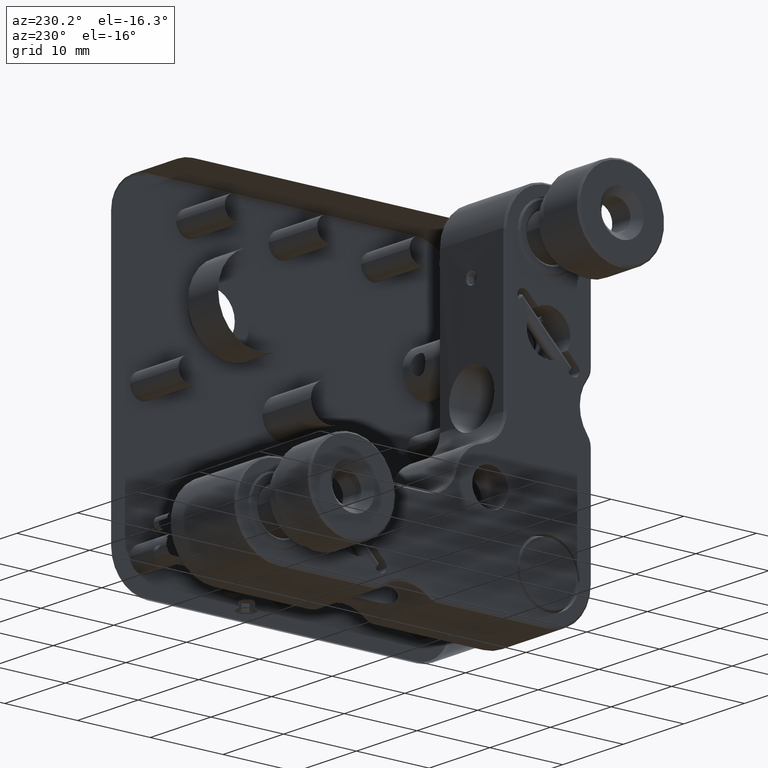
[diagram: clean part render]
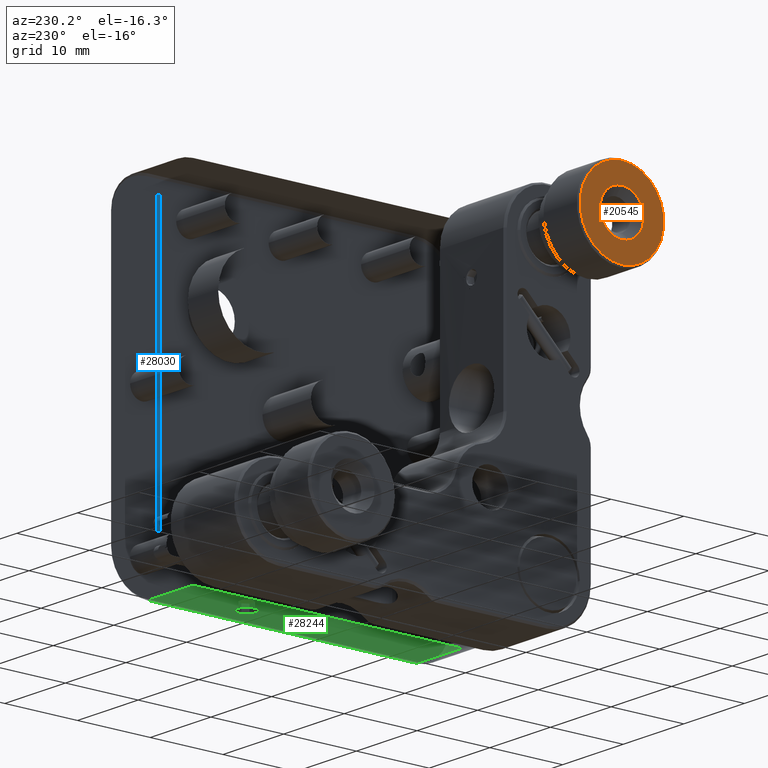
[diagram: same view with three faces highlighted in distinct colors, each labeled with its STEP entity id]
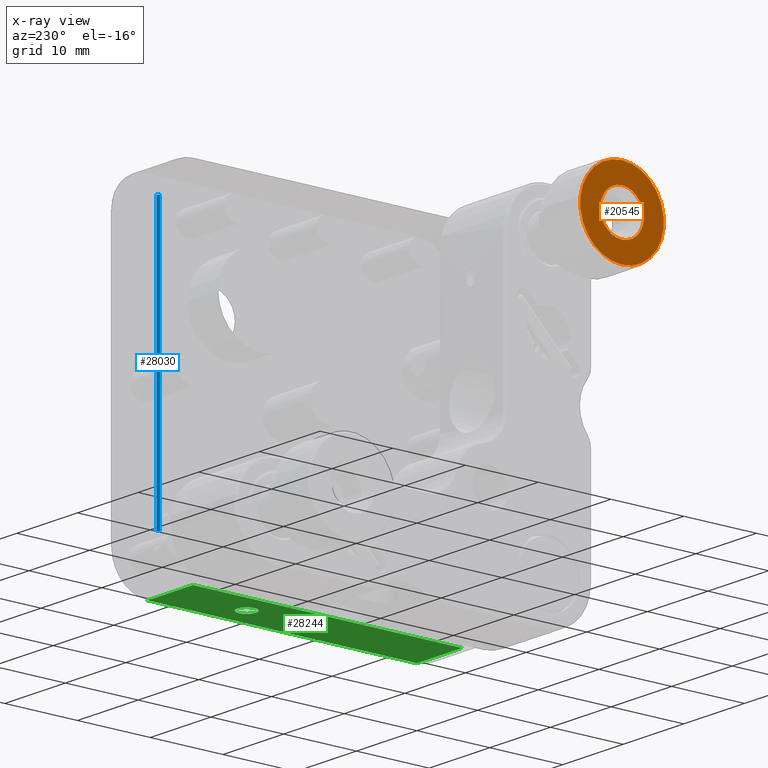
[diagram: x-ray of the same camera — body ghosted, the three highlighted faces saturated]
A machine part, auxiliary view with three faces highlighted in distinct colors.
The next image is the same camera in x-ray (body ghosted, the three faces saturated) — at least one of them is partly hidden behind the body in this view.
Their STEP definitions:

[orange] entity #20545 — the highlighted planar face has unit normal (1, -0, -0).
#692 = AXIS2_PLACEMENT_3D ( 'NONE', #29428, #26297, #4690 ) ;
#2191 = DIRECTION ( 'NONE',  ( -6.033820785925656244E-16, 0.000000000000000000, -1.000000000000000000 ) ) ;
#3595 = VERTEX_POINT ( 'NONE', #17958 ) ;
#3852 = FACE_BOUND ( 'NONE', #4247, .T. ) ;
#4247 = EDGE_LOOP ( 'NONE', ( #15850 ) ) ;
#4690 = DIRECTION ( 'NONE',  ( 0.000000000000000000, 0.000000000000000000, 1.000000000000000000 ) ) ;
#4694 = EDGE_LOOP ( 'NONE', ( #30647 ) ) ;
#6217 = AXIS2_PLACEMENT_3D ( 'NONE', #13934, #25608, #18834 ) ;
#13330 = AXIS2_PLACEMENT_3D ( 'NONE', #24262, #19234, #2191 ) ;
#13780 = PLANE ( 'NONE',  #6217 ) ;
#13934 = CARTESIAN_POINT ( 'NONE',  ( -17.60735931288070333, -18.50000000000006395, 18.49999999999982236 ) ) ;
#15850 = ORIENTED_EDGE ( 'NONE', *, *, #19535, .F. ) ;
#17958 = CARTESIAN_POINT ( 'NONE',  ( -17.60735931281942612, -18.50000000000006395, 21.49999999993976729 ) ) ;
#18834 = DIRECTION ( 'NONE',  ( -4.440892098500623697E-16, 0.000000000000000000, -1.000000000000000000 ) ) ;
#19234 = DIRECTION ( 'NONE',  ( 1.000000000000000000, -2.312086200337589731E-16, -5.300051052593729313E-16 ) ) ;
#19535 = EDGE_CURVE ( 'NONE', #3595, #3595, #24860, .T. ) ;
#20545 = ADVANCED_FACE ( 'NONE', ( #30959, #3852 ), #13780, .F. ) ;
#24262 = CARTESIAN_POINT ( 'NONE',  ( -17.60735931279705824, -18.50000000000006395, 18.49999999999982236 ) ) ;
#24860 = CIRCLE ( 'NONE', #692, 2.999999999939946704 ) ;
#25608 = DIRECTION ( 'NONE',  ( 1.000000000000000000, -6.523163957565617850E-17, -4.440892098500623697E-16 ) ) ;
#25988 = CARTESIAN_POINT ( 'NONE',  ( -17.60735931279706179, -18.50000000000006395, 12.74999999992298605 ) ) ;
#26297 = DIRECTION ( 'NONE',  ( -1.000000000000000000, 0.000000000000000000, -0.000000000000000000 ) ) ;
#27210 = EDGE_CURVE ( 'NONE', #28338, #28338, #30017, .T. ) ;
#28338 = VERTEX_POINT ( 'NONE', #25988 ) ;
#29428 = CARTESIAN_POINT ( 'NONE',  ( -17.60735931281942612, -18.50000000000006395, 18.49999999999982236 ) ) ;
#30017 = CIRCLE ( 'NONE', #13330, 5.750000000076836315 ) ;
#30647 = ORIENTED_EDGE ( 'NONE', *, *, #27210, .F. ) ;
#30959 = FACE_OUTER_BOUND ( 'NONE', #4694, .T. ) ;

[blue] entity #28030 — the highlighted planar face has unit normal (-0.7071, 0.7071, -0).
#235 = CARTESIAN_POINT ( 'NONE',  ( 8.746067811865493979, 23.49999999999998224, 18.49999999999999289 ) ) ;
#318 = ORIENTED_EDGE ( 'NONE', *, *, #7543, .F. ) ;
#790 = LINE ( 'NONE', #10422, #11212 ) ;
#1978 = ORIENTED_EDGE ( 'NONE', *, *, #29377, .T. ) ;
#3132 = DIRECTION ( 'NONE',  ( -0.7071067811865570096, 0.7071067811865380248, -2.566002481758752896E-16 ) ) ;
#3209 = LINE ( 'NONE', #29540, #9230 ) ;
#3240 = ORIENTED_EDGE ( 'NONE', *, *, #11063, .F. ) ;
#3761 = AXIS2_PLACEMENT_3D ( 'NONE', #15436, #3132, #26939 ) ;
#5500 = LINE ( 'NONE', #8956, #8745 ) ;
#6215 = LINE ( 'NONE', #13311, #26452 ) ;
#7543 = EDGE_CURVE ( 'NONE', #20385, #18164, #3209, .T. ) ;
#8127 = CARTESIAN_POINT ( 'NONE',  ( 8.496067811885041010, 23.25000000001951861, 18.49999999999999645 ) ) ;
#8188 = DIRECTION ( 'NONE',  ( 0.7071067811865380248, 0.7071067811865570096, -0.000000000000000000 ) ) ;
#8745 = VECTOR ( 'NONE', #25198, 1000.000000000000000 ) ;
#8956 = CARTESIAN_POINT ( 'NONE',  ( 8.496067811865485098, 23.24999999999996803, 4.824766990668619821E-15 ) ) ;
#9230 = VECTOR ( 'NONE', #19467, 1000.000000000000000 ) ;
#10422 = CARTESIAN_POINT ( 'NONE',  ( 8.496067811865483321, 23.24999999999996447, 18.49999999999999645 ) ) ;
#11063 = EDGE_CURVE ( 'NONE', #24767, #20385, #790, .T. ) ;
#11212 = VECTOR ( 'NONE', #8188, 1000.000000000000000 ) ;
#13311 = CARTESIAN_POINT ( 'NONE',  ( 498985.2460677998024, 498999.9999999999418, -18.50000000000000355 ) ) ;
#13973 = EDGE_CURVE ( 'NONE', #24767, #26492, #5500, .T. ) ;
#15436 = CARTESIAN_POINT ( 'NONE',  ( 8.496067811865486874, 23.24999999999996092, -3.770308015664799005E-15 ) ) ;
#17797 = PLANE ( 'NONE',  #3761 ) ;
#18164 = VERTEX_POINT ( 'NONE', #25055 ) ;
#18677 = DIRECTION ( 'NONE',  ( 0.7071067811865390240, 0.7071067811865561215, 0.000000000000000000 ) ) ;
#19270 = CARTESIAN_POINT ( 'NONE',  ( 8.496067811866396369, 23.24999999997689315, -18.50000000000000355 ) ) ;
#19467 = DIRECTION ( 'NONE',  ( 0.000000000000000000, -3.696806454336957144E-16, -1.000000000000000000 ) ) ;
#19698 = FACE_OUTER_BOUND ( 'NONE', #24186, .T. ) ;
#20385 = VERTEX_POINT ( 'NONE', #235 ) ;
#24186 = EDGE_LOOP ( 'NONE', ( #1978, #318, #3240, #27451 ) ) ;
#24767 = VERTEX_POINT ( 'NONE', #8127 ) ;
#25055 = CARTESIAN_POINT ( 'NONE',  ( 8.746067811859580488, 23.49999999997473665, -18.50000000000000355 ) ) ;
#25198 = DIRECTION ( 'NONE',  ( -6.793094355065668215E-18, 2.261613359270136103E-33, -1.000000000000000000 ) ) ;
#26452 = VECTOR ( 'NONE', #18677, 1000.000000000000000 ) ;
#26492 = VERTEX_POINT ( 'NONE', #19270 ) ;
#26939 = DIRECTION ( 'NONE',  ( -0.7071067811865380248, -0.7071067811865570096, 0.000000000000000000 ) ) ;
#27451 = ORIENTED_EDGE ( 'NONE', *, *, #13973, .T. ) ;
#28030 = ADVANCED_FACE ( 'NONE', ( #19698 ), #17797, .F. ) ;
#29377 = EDGE_CURVE ( 'NONE', #26492, #18164, #6215, .T. ) ;
#29540 = CARTESIAN_POINT ( 'NONE',  ( 8.746067811865492203, 23.49999999999998579, 23.49999999999999289 ) ) ;

[green] entity #28244 — the highlighted planar face has unit normal (0, 0, 1).
#196 = CARTESIAN_POINT ( 'NONE',  ( 11.27532268642280222, 7.687496028090354372, -23.49999999999999645 ) ) ;
#241 = DIRECTION ( 'NONE',  ( 6.793094355065742171E-18, 2.220446049250313081E-16, 1.000000000000000000 ) ) ;
#778 = CARTESIAN_POINT ( 'NONE',  ( 13.44087273192860366, 8.823014498037663245, -23.50000000000000355 ) ) ;
#938 = CARTESIAN_POINT ( 'NONE',  ( 11.24606781186547977, 8.079387215878647055, -23.50000000000000711 ) ) ;
#1009 = EDGE_CURVE ( 'NONE', #5898, #25306, #19104, .T. ) ;
#1218 = CARTESIAN_POINT ( 'NONE',  ( 16.24606781186546911, 23.49999999999996447, -23.50000000000000711 ) ) ;
#1244 = CARTESIAN_POINT ( 'NONE',  ( 11.49044637849198480, 8.762040589323955686, -23.50000000000000355 ) ) ;
#1398 = CARTESIAN_POINT ( 'NONE',  ( 12.91906911621610199, 9.176421480074807846, -23.50000000000001421 ) ) ;
#2245 = CARTESIAN_POINT ( 'NONE',  ( 13.73509723390648674, 7.803557573843720618, -23.50000000000000355 ) ) ;
#2369 = CARTESIAN_POINT ( 'NONE',  ( 8.496067811865483321, 18.49999999999996803, -23.50000000000000355 ) ) ;
#2370 = B_SPLINE_CURVE_WITH_KNOTS ( 'NONE', 3,
 ( #19137, #9982, #2245, #14232, #26531, #26221, #28429, #23711, #11870, #4613, #28586, #6829, #30953, #24318, #9818, #21651, #24167, #12170, #9358, #2552, #14081, #7443, #26072, #21347, #14691, #16755, #6978, #28734, #26678, #21801, #21504, #196, #31112, #5071 ),
 .UNSPECIFIED., .F., .F.,
 ( 4, 1, 1, 2, 2, 2, 1, 1, 2, 2, 2, 1, 1, 2, 2, 2, 1, 1, 2, 2, 4 ),
 ( 0.000000000000000000, 0.06250000000000328904, 0.09375000000000412170, 0.1093750000000045519, 0.1250000000000049682, 0.2500000000000056066, 0.3125000000000059397, 0.3437500000000059397, 0.3593750000000053846, 0.3750000000000047740, 0.5000000000000014433, 0.5624999999999997780, 0.5937499999999988898, 0.6093749999999985567, 0.6249999999999981126, 0.7499999999999987788, 0.8124999999999991118, 0.8437499999999986677, 0.8593749999999984457, 0.8749999999999983347, 1.000000000000000000 ),
 .UNSPECIFIED. ) ;
#2552 = CARTESIAN_POINT ( 'NONE',  ( 12.16671749543686332, 6.792923930133362376, -23.50000000000000711 ) ) ;
#2590 = B_SPLINE_CURVE_WITH_KNOTS ( 'NONE', 3,
 ( #8339, #938, #27728, #25056, #20496, #18277, #24898, #15747, #1244, #3453, #12919, #13072, #29782, #29630, #27262, #23018, #15594, #13221, #22547, #10561, #17964, #1398, #25367, #8174, #8023, #778, #11026, #27420, #20646, #30246, #27887, #6284, #10717, #5657 ),
 .UNSPECIFIED., .F., .F.,
 ( 4, 1, 1, 2, 2, 2, 1, 1, 2, 2, 2, 1, 1, 2, 2, 2, 1, 1, 2, 2, 4 ),
 ( 0.000000000000000000, 0.06249999999999822364, 0.09374999999999665545, 0.1093749999999958644, 0.1249999999999950873, 0.2499999999999932276, 0.3124999999999922839, 0.3437499999999921729, 0.3593749999999926725, 0.3749999999999931721, 0.4999999999999937828, 0.5624999999999940048, 0.5937499999999941158, 0.6093749999999942268, 0.6249999999999943379, 0.7499999999999923395, 0.8124999999999917843, 0.8437499999999924505, 0.8593749999999924505, 0.8749999999999924505, 1.000000000000000000 ),
 .UNSPECIFIED. ) ;
#2610 = ORIENTED_EDGE ( 'NONE', *, *, #28810, .T. ) ;
#3453 = CARTESIAN_POINT ( 'NONE',  ( 11.67305331382745059, 8.944804920062754405, -23.50000000000000355 ) ) ;
#4502 = EDGE_CURVE ( 'NONE', #21507, #19010, #2370, .T. ) ;
#4613 = CARTESIAN_POINT ( 'NONE',  ( 13.31908230990388553, 7.055195079937422342, -23.50000000000000355 ) ) ;
#4657 = CARTESIAN_POINT ( 'NONE',  ( 8.496067811865486874, 23.49999999999996447, -23.50000000000000711 ) ) ;
#4739 = DIRECTION ( 'NONE',  ( -1.000000000000000000, 3.329283005738959424E-16, 6.793094355065668215E-18 ) ) ;
#5071 = CARTESIAN_POINT ( 'NONE',  ( 11.24606781186547977, 7.999999999999968914, -23.50000000000000355 ) ) ;
#5657 = CARTESIAN_POINT ( 'NONE',  ( 13.74606781186547799, 7.999999999999968914, -23.50000000000000355 ) ) ;
#5898 = VERTEX_POINT ( 'NONE', #28982 ) ;
#6284 = CARTESIAN_POINT ( 'NONE',  ( 13.71681293730815909, 8.312503971908899558, -23.50000000000000355 ) ) ;
#6829 = CARTESIAN_POINT ( 'NONE',  ( 13.09259242905708120, 6.899880677853158950, -23.50000000000000355 ) ) ;
#6978 = CARTESIAN_POINT ( 'NONE',  ( 11.47077782163707127, 7.275607871987727293, -23.50000000000000711 ) ) ;
#7443 = CARTESIAN_POINT ( 'NONE',  ( 12.07306650751486643, 6.823578519925129982, -23.50000000000000000 ) ) ;
#8023 = CARTESIAN_POINT ( 'NONE',  ( 13.25810840118879597, 9.005621433374134455, -23.50000000000000355 ) ) ;
#8174 = CARTESIAN_POINT ( 'NONE',  ( 13.11635636384933434, 9.098901979465441769, -23.50000000000000711 ) ) ;
#8339 = CARTESIAN_POINT ( 'NONE',  ( 11.24606781186547977, 7.999999999999968914, -23.50000000000000355 ) ) ;
#9062 = VERTEX_POINT ( 'NONE', #10910 ) ;
#9358 = CARTESIAN_POINT ( 'NONE',  ( 12.29977431640771890, 6.760911688795397723, -23.49999999999999645 ) ) ;
#9508 = DIRECTION ( 'NONE',  ( 1.000000000000000000, -3.329283005738959424E-16, -6.793094355065668215E-18 ) ) ;
#9818 = CARTESIAN_POINT ( 'NONE',  ( 12.97461668283887271, 6.845069892576910675, -23.50000000000000711 ) ) ;
#9982 = CARTESIAN_POINT ( 'NONE',  ( 13.74606781186547622, 7.920612784121565220, -23.50000000000000355 ) ) ;
#10003 = ORIENTED_EDGE ( 'NONE', *, *, #18980, .T. ) ;
#10561 = CARTESIAN_POINT ( 'NONE',  ( 12.82541812829409800, 9.207076069866580781, -23.49999999999999289 ) ) ;
#10717 = CARTESIAN_POINT ( 'NONE',  ( 13.74606781186548332, 8.159131176258121343, -23.50000000000001066 ) ) ;
#10847 = DIRECTION ( 'NONE',  ( -2.774864527494587688E-16, -1.000000000000000000, 2.774864527494665588E-16 ) ) ;
#10910 = CARTESIAN_POINT ( 'NONE',  ( 8.746067811845360751, -18.50000000000003197, -23.49999999996054711 ) ) ;
#11026 = CARTESIAN_POINT ( 'NONE',  ( 13.52135780209415650, 8.724392128012190994, -23.49999999999999645 ) ) ;
#11870 = CARTESIAN_POINT ( 'NONE',  ( 13.50168924523823044, 7.237959410675510519, -23.49999999999999645 ) ) ;
#12170 = CARTESIAN_POINT ( 'NONE',  ( 12.41676569924335993, 6.749966349049361547, -23.50000000000000000 ) ) ;
#12580 = EDGE_CURVE ( 'NONE', #5898, #22763, #28170, .T. ) ;
#12838 = VECTOR ( 'NONE', #29399, 1000.000000000000000 ) ;
#12919 = CARTESIAN_POINT ( 'NONE',  ( 11.77167568385267948, 9.025289990228062109, -23.50000000000000711 ) ) ;
#13072 = CARTESIAN_POINT ( 'NONE',  ( 11.89954319467436861, 9.100119322147088852, -23.50000000000000355 ) ) ;
#13221 = CARTESIAN_POINT ( 'NONE',  ( 12.57536992448760316, 9.250033650950578945, -23.50000000000000711 ) ) ;
#13457 = EDGE_LOOP ( 'NONE', ( #10003, #19561 ) ) ;
#14081 = CARTESIAN_POINT ( 'NONE',  ( 12.11042881337878896, 6.810766893199826200, -23.50000000000000355 ) ) ;
#14232 = CARTESIAN_POINT ( 'NONE',  ( 13.70309971485941425, 7.670537985547481341, -23.50000000000001066 ) ) ;
#14545 = ORIENTED_EDGE ( 'NONE', *, *, #1009, .T. ) ;
#14691 = CARTESIAN_POINT ( 'NONE',  ( 11.73402722254186159, 6.994378566625829130, -23.50000000000000355 ) ) ;
#15151 = ORIENTED_EDGE ( 'NONE', *, *, #12580, .F. ) ;
#15594 = CARTESIAN_POINT ( 'NONE',  ( 12.33746358662123299, 9.249932698098746187, -23.49999999999999645 ) ) ;
#15747 = CARTESIAN_POINT ( 'NONE',  ( 11.39716583240020675, 8.620288551984028658, -23.50000000000001421 ) ) ;
#16286 = EDGE_CURVE ( 'NONE', #9062, #22763, #26528, .T. ) ;
#16755 = CARTESIAN_POINT ( 'NONE',  ( 11.55126289180251398, 7.176985501962261260, -23.50000000000000355 ) ) ;
#16957 = DIRECTION ( 'NONE',  ( 0.000000000000000000, -1.000000000000000000, 2.220446049250313081E-16 ) ) ;
#17964 = CARTESIAN_POINT ( 'NONE',  ( 12.88170681035217768, 9.189233106800111628, -23.50000000000000355 ) ) ;
#18277 = CARTESIAN_POINT ( 'NONE',  ( 11.31966210567373565, 8.423041196502094152, -23.50000000000000000 ) ) ;
#18980 = EDGE_CURVE ( 'NONE', #19010, #21507, #2590, .T. ) ;
#19010 = VERTEX_POINT ( 'NONE', #27579 ) ;
#19104 = LINE ( 'NONE', #2369, #21456 ) ;
#19137 = CARTESIAN_POINT ( 'NONE',  ( 13.74606781186547799, 7.999999999999968914, -23.50000000000000355 ) ) ;
#19482 = VECTOR ( 'NONE', #9508, 1000.000000000000000 ) ;
#19561 = ORIENTED_EDGE ( 'NONE', *, *, #4502, .T. ) ;
#20423 = ORIENTED_EDGE ( 'NONE', *, *, #16286, .T. ) ;
#20429 = CARTESIAN_POINT ( 'NONE',  ( 8.746067811865490427, 23.49999999999996447, -23.50000000000000711 ) ) ;
#20496 = CARTESIAN_POINT ( 'NONE',  ( 11.30686309805491163, 8.385710804359378656, -23.50000000000000000 ) ) ;
#20646 = CARTESIAN_POINT ( 'NONE',  ( 13.62417043699093000, 8.538979667026008968, -23.50000000000000355 ) ) ;
#21347 = CARTESIAN_POINT ( 'NONE',  ( 11.87577925988116512, 6.901098020534679911, -23.50000000000000711 ) ) ;
#21456 = VECTOR ( 'NONE', #4739, 1000.000000000000000 ) ;
#21504 = CARTESIAN_POINT ( 'NONE',  ( 11.34114615417676930, 7.521429811167287482, -23.50000000000000000 ) ) ;
#21507 = VERTEX_POINT ( 'NONE', #24951 ) ;
#21651 = CARTESIAN_POINT ( 'NONE',  ( 12.80874232664941381, 6.779322472432119717, -23.50000000000000355 ) ) ;
#21801 = CARTESIAN_POINT ( 'NONE',  ( 11.35021774268854067, 7.499993541613445558, -23.50000000000000355 ) ) ;
#21831 = CARTESIAN_POINT ( 'NONE',  ( 8.746067811865490427, 18.49999999999996803, -23.50000000000000711 ) ) ;
#22547 = CARTESIAN_POINT ( 'NONE',  ( 12.69236130732324064, 9.239088311204540105, -23.50000000000000355 ) ) ;
#22763 = VERTEX_POINT ( 'NONE', #26326 ) ;
#23018 = CARTESIAN_POINT ( 'NONE',  ( 12.18339329708195429, 9.220677527567818998, -23.50000000000000711 ) ) ;
#23711 = CARTESIAN_POINT ( 'NONE',  ( 13.59496979133133010, 7.379711448016768927, -23.50000000000001066 ) ) ;
#24167 = CARTESIAN_POINT ( 'NONE',  ( 12.65467203710972299, 6.750067301901188976, -23.50000000000000000 ) ) ;
#24318 = CARTESIAN_POINT ( 'NONE',  ( 12.99607427025233086, 6.854149930823224324, -23.50000000000000711 ) ) ;
#24367 = FACE_BOUND ( 'NONE', #13457, .T. ) ;
#24898 = CARTESIAN_POINT ( 'NONE',  ( 11.32591576092959862, 8.440097116323347137, -23.50000000000000000 ) ) ;
#24951 = CARTESIAN_POINT ( 'NONE',  ( 13.74606781186547799, 7.999999999999968914, -23.50000000000000355 ) ) ;
#25056 = CARTESIAN_POINT ( 'NONE',  ( 11.28903590887154174, 8.329462014452822416, -23.50000000000000711 ) ) ;
#25306 = VERTEX_POINT ( 'NONE', #21831 ) ;
#25367 = CARTESIAN_POINT ( 'NONE',  ( 12.93616492818888375, 9.170152050935827859, -23.50000000000000711 ) ) ;
#26069 = CARTESIAN_POINT ( 'NONE',  ( 8.496067811865476216, -18.50000000000003553, -23.49999999999999289 ) ) ;
#26072 = CARTESIAN_POINT ( 'NONE',  ( 12.05597069554213796, 6.829847949064088652, -23.50000000000000000 ) ) ;
#26221 = CARTESIAN_POINT ( 'NONE',  ( 13.67247351805722211, 7.576958803497975126, -23.50000000000000000 ) ) ;
#26266 = FACE_OUTER_BOUND ( 'NONE', #26817, .T. ) ;
#26326 = CARTESIAN_POINT ( 'NONE',  ( 16.24606781189286764, -18.50000000000003197, -23.49999999999214140 ) ) ;
#26331 = VECTOR ( 'NONE', #10847, 1000.000000000000000 ) ;
#26528 = LINE ( 'NONE', #26069, #19482 ) ;
#26531 = CARTESIAN_POINT ( 'NONE',  ( 13.68527252567604613, 7.614289195640790098, -23.50000000000000355 ) ) ;
#26678 = CARTESIAN_POINT ( 'NONE',  ( 11.36796518674016099, 7.461020332973919977, -23.50000000000000355 ) ) ;
#26721 = PLANE ( 'NONE',  #29967 ) ;
#26817 = EDGE_LOOP ( 'NONE', ( #2610, #20423, #15151, #14545 ) ) ;
#27262 = CARTESIAN_POINT ( 'NONE',  ( 12.01751894089203709, 9.154930107423028929, -23.50000000000000355 ) ) ;
#27420 = CARTESIAN_POINT ( 'NONE',  ( 13.59618713401303580, 8.596524617190645756, -23.50000000000001066 ) ) ;
#27579 = CARTESIAN_POINT ( 'NONE',  ( 11.24606781186547977, 7.999999999999968914, -23.50000000000000355 ) ) ;
#27728 = CARTESIAN_POINT ( 'NONE',  ( 11.25703838982447458, 8.196442426156695049, -23.50000000000000355 ) ) ;
#27887 = CARTESIAN_POINT ( 'NONE',  ( 13.65098946955418491, 8.478570188832737387, -23.50000000000000000 ) ) ;
#28170 = LINE ( 'NONE', #1218, #26331 ) ;
#28244 = ADVANCED_FACE ( 'NONE', ( #26266, #24367 ), #26721, .T. ) ;
#28429 = CARTESIAN_POINT ( 'NONE',  ( 13.66621986280129164, 7.559902883676485885, -23.50000000000000000 ) ) ;
#28586 = CARTESIAN_POINT ( 'NONE',  ( 13.22045993987894263, 6.974710009772291386, -23.50000000000001066 ) ) ;
#28734 = CARTESIAN_POINT ( 'NONE',  ( 11.39594848971812091, 7.403475382809276972, -23.50000000000000000 ) ) ;
#28810 = EDGE_CURVE ( 'NONE', #25306, #9062, #29868, .T. ) ;
#28982 = CARTESIAN_POINT ( 'NONE',  ( 16.24606781192789740, 18.49999999999996803, -23.49999999996930100 ) ) ;
#29399 = DIRECTION ( 'NONE',  ( 0.000000000000000000, -1.000000000000000000, 2.220446049250313081E-16 ) ) ;
#29630 = CARTESIAN_POINT ( 'NONE',  ( 11.99606135347880453, 9.145850069176823638, -23.50000000000000711 ) ) ;
#29782 = CARTESIAN_POINT ( 'NONE',  ( 11.95708814483915816, 9.128102625125135816, -23.50000000000000355 ) ) ;
#29868 = LINE ( 'NONE', #20429, #12838 ) ;
#29967 = AXIS2_PLACEMENT_3D ( 'NONE', #4657, #241, #16957 ) ;
#30246 = CARTESIAN_POINT ( 'NONE',  ( 13.64191788104249525, 8.500006458386486941, -23.50000000000000000 ) ) ;
#30953 = CARTESIAN_POINT ( 'NONE',  ( 13.03504747889211934, 6.871897374875002740, -23.50000000000000000 ) ) ;
#31112 = CARTESIAN_POINT ( 'NONE',  ( 11.24606781186547799, 7.840868823741135252, -23.50000000000000355 ) ) ;